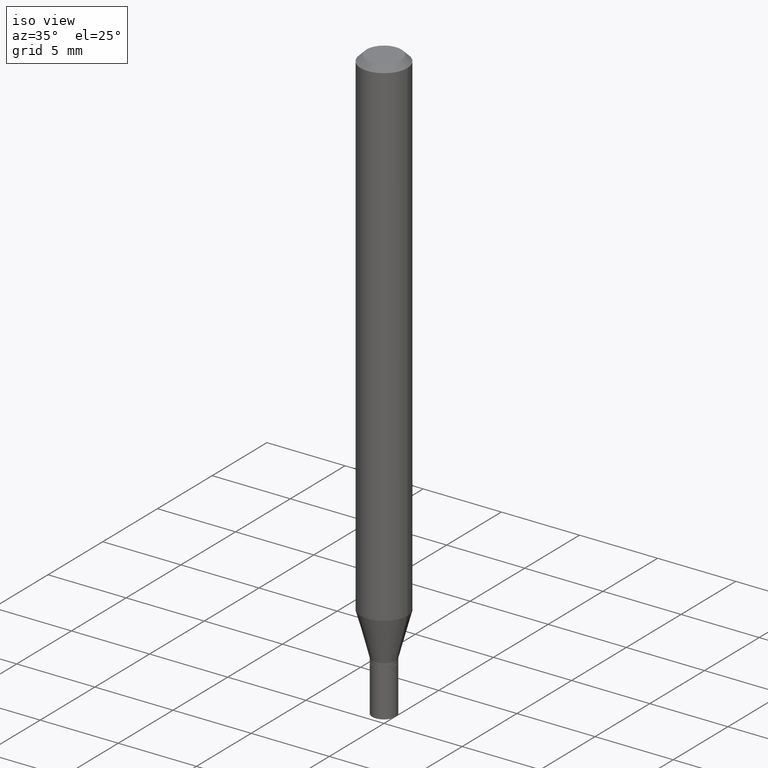
[diagram: clean part render]
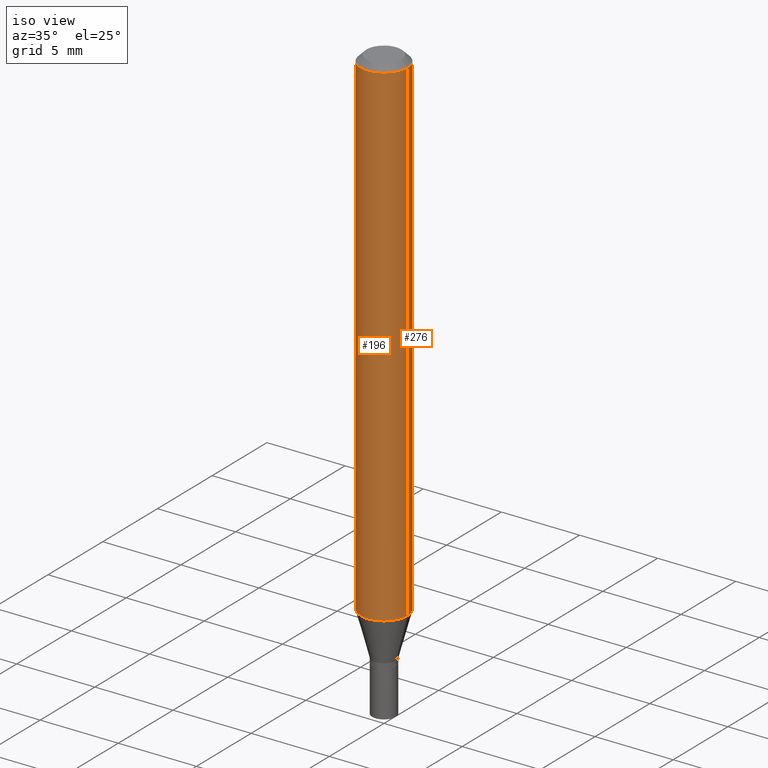
[diagram: same view with one multi-face feature highlighted, each face labeled with its STEP entity id]
A machine part, iso view. The highlighted faces form ONE feature: a constant-radius fillet chain: 2 tangent blend faces with common blend radius 1.4999 mm. The faces share edges in the B-rep.
Their STEP definitions:
[1] entity #276 (Cylinder):
#8 = EDGE_CURVE ( 'NONE', #217, #253, #255, .T. ) ;
#12 = CARTESIAN_POINT ( 'NONE',  ( 3.668203209277705088E-31, -5.237222008264718399E-17, -0.01499999999999999944 ) ) ;
#15 = DIRECTION ( 'NONE',  ( -2.445468806185136597E-29, 3.491481338843145583E-15, 1.000000000000000000 ) ) ;
#27 = EDGE_CURVE ( 'NONE', #217, #141, #251, .T. ) ;
#36 = DIRECTION ( 'NONE',  ( 1.000000000000000000, -6.982962677686266711E-15, 0.000000000000000000 ) ) ;
#40 = DIRECTION ( 'NONE',  ( 1.000000000000000000, -6.982962677686273021E-15, 0.000000000000000000 ) ) ;
#42 = CARTESIAN_POINT ( 'NONE',  ( -0.05905000000000002608, -1.809568633205325453E-15, -0.01499999999999999944 ) ) ;
#49 = DIRECTION ( 'NONE',  ( -2.445468806185136877E-29, 3.491481338843145188E-15, 1.000000000000000000 ) ) ;
#51 = CYLINDRICAL_SURFACE ( 'NONE', #380, 0.05905000000000000526 ) ;
#104 = CARTESIAN_POINT ( 'NONE',  ( 0.05905000000000000526, -4.123439461173741313E-16, 2.879382386107500571E-30 ) ) ;
#118 = EDGE_CURVE ( 'NONE', #253, #126, #175, .T. ) ;
#121 = ORIENTED_EDGE ( 'NONE', *, *, #118, .F. ) ;
#126 = VERTEX_POINT ( 'NONE', #42 ) ;
#132 = CARTESIAN_POINT ( 'NONE',  ( -0.05905000000000000526, 4.195754854663391971E-16, -2.904631170795522242E-30 ) ) ;
#141 = VERTEX_POINT ( 'NONE', #201 ) ;
#151 = CARTESIAN_POINT ( 'NONE',  ( 0.000000000000000000, 0.000000000000000000, 0.000000000000000000 ) ) ;
#152 = EDGE_CURVE ( 'NONE', #141, #126, #459, .T. ) ;
#175 = CIRCLE ( 'NONE', #421, 0.05905000000000001914 ) ;
#201 = CARTESIAN_POINT ( 'NONE',  ( -0.05904999999999999832, -3.986340531794342137E-15, -1.261904501176718707 ) ) ;
#217 = VERTEX_POINT ( 'NONE', #412 ) ;
#251 = CIRCLE ( 'NONE', #345, 0.05904999999999999832 ) ;
#253 = VERTEX_POINT ( 'NONE', #296 ) ;
#255 = LINE ( 'NONE', #104, #354 ) ;
#257 = DIRECTION ( 'NONE',  ( -2.445468806185136877E-29, 3.491481338843145188E-15, 1.000000000000000000 ) ) ;
#263 = ORIENTED_EDGE ( 'NONE', *, *, #152, .T. ) ;
#276 = ADVANCED_FACE ( 'NONE', ( #329 ), #51, .T. ) ;
#280 = ORIENTED_EDGE ( 'NONE', *, *, #8, .F. ) ;
#294 = DIRECTION ( 'NONE',  ( -2.445468806185136597E-29, 3.491481338843145583E-15, 1.000000000000000000 ) ) ;
#296 = CARTESIAN_POINT ( 'NONE',  ( 0.05905000000000001914, -4.647161662000214077E-16, -0.01499999999999999944 ) ) ;
#303 = EDGE_LOOP ( 'NONE', ( #346, #263, #121, #280 ) ) ;
#319 = CARTESIAN_POINT ( 'NONE',  ( 3.085948094012280841E-29, -4.405916017260681630E-15, -1.261904501176718707 ) ) ;
#329 = FACE_OUTER_BOUND ( 'NONE', #303, .T. ) ;
#345 = AXIS2_PLACEMENT_3D ( 'NONE', #319, #294, #40 ) ;
#346 = ORIENTED_EDGE ( 'NONE', *, *, #27, .T. ) ;
#354 = VECTOR ( 'NONE', #257, 39.37007874015748143 ) ;
#363 = DIRECTION ( 'NONE',  ( -2.445468806185136597E-29, 3.491481338843145583E-15, 1.000000000000000000 ) ) ;
#380 = AXIS2_PLACEMENT_3D ( 'NONE', #151, #15, #409 ) ;
#409 = DIRECTION ( 'NONE',  ( 1.000000000000000000, -6.982962677686267499E-15, 4.876176775795936353E-29 ) ) ;
#412 = CARTESIAN_POINT ( 'NONE',  ( 0.05904999999999999832, -4.818259963378055761E-15, -1.261904501176718707 ) ) ;
#421 = AXIS2_PLACEMENT_3D ( 'NONE', #12, #363, #36 ) ;
#439 = VECTOR ( 'NONE', #49, 39.37007874015748143 ) ;
#459 = LINE ( 'NONE', #132, #439 ) ;
[2] entity #196 (Cylinder):
#8 = EDGE_CURVE ( 'NONE', #217, #253, #255, .T. ) ;
#10 = CARTESIAN_POINT ( 'NONE',  ( 3.668203209277705088E-31, -5.237222008264718399E-17, -0.01499999999999999944 ) ) ;
#13 = DIRECTION ( 'NONE',  ( -2.445468806185136597E-29, 3.491481338843145583E-15, 1.000000000000000000 ) ) ;
#23 = AXIS2_PLACEMENT_3D ( 'NONE', #360, #78, #406 ) ;
#42 = CARTESIAN_POINT ( 'NONE',  ( -0.05905000000000002608, -1.809568633205325453E-15, -0.01499999999999999944 ) ) ;
#49 = DIRECTION ( 'NONE',  ( -2.445468806185136877E-29, 3.491481338843145188E-15, 1.000000000000000000 ) ) ;
#52 = DIRECTION ( 'NONE',  ( 1.000000000000000000, -6.982962677686266711E-15, 0.000000000000000000 ) ) ;
#67 = ORIENTED_EDGE ( 'NONE', *, *, #152, .F. ) ;
#78 = DIRECTION ( 'NONE',  ( -2.445468806185136597E-29, 3.491481338843145583E-15, 1.000000000000000000 ) ) ;
#81 = FACE_OUTER_BOUND ( 'NONE', #419, .T. ) ;
#83 = ORIENTED_EDGE ( 'NONE', *, *, #8, .T. ) ;
#104 = CARTESIAN_POINT ( 'NONE',  ( 0.05905000000000000526, -4.123439461173741313E-16, 2.879382386107500571E-30 ) ) ;
#126 = VERTEX_POINT ( 'NONE', #42 ) ;
#132 = CARTESIAN_POINT ( 'NONE',  ( -0.05905000000000000526, 4.195754854663391971E-16, -2.904631170795522242E-30 ) ) ;
#140 = AXIS2_PLACEMENT_3D ( 'NONE', #370, #13, #324 ) ;
#141 = VERTEX_POINT ( 'NONE', #201 ) ;
#152 = EDGE_CURVE ( 'NONE', #141, #126, #459, .T. ) ;
#184 = EDGE_CURVE ( 'NONE', #141, #217, #359, .T. ) ;
#191 = CYLINDRICAL_SURFACE ( 'NONE', #140, 0.05905000000000000526 ) ;
#196 = ADVANCED_FACE ( 'NONE', ( #81 ), #191, .T. ) ;
#201 = CARTESIAN_POINT ( 'NONE',  ( -0.05904999999999999832, -3.986340531794342137E-15, -1.261904501176718707 ) ) ;
#217 = VERTEX_POINT ( 'NONE', #412 ) ;
#253 = VERTEX_POINT ( 'NONE', #296 ) ;
#255 = LINE ( 'NONE', #104, #354 ) ;
#257 = DIRECTION ( 'NONE',  ( -2.445468806185136877E-29, 3.491481338843145188E-15, 1.000000000000000000 ) ) ;
#296 = CARTESIAN_POINT ( 'NONE',  ( 0.05905000000000001914, -4.647161662000214077E-16, -0.01499999999999999944 ) ) ;
#324 = DIRECTION ( 'NONE',  ( 1.000000000000000000, -6.982962677686267499E-15, 4.876176775795936353E-29 ) ) ;
#354 = VECTOR ( 'NONE', #257, 39.37007874015748143 ) ;
#359 = CIRCLE ( 'NONE', #23, 0.05904999999999999832 ) ;
#360 = CARTESIAN_POINT ( 'NONE',  ( 3.085948094012280841E-29, -4.405916017260681630E-15, -1.261904501176718707 ) ) ;
#369 = CIRCLE ( 'NONE', #422, 0.05905000000000001914 ) ;
#370 = CARTESIAN_POINT ( 'NONE',  ( 0.000000000000000000, 0.000000000000000000, 0.000000000000000000 ) ) ;
#390 = ORIENTED_EDGE ( 'NONE', *, *, #184, .T. ) ;
#391 = EDGE_CURVE ( 'NONE', #126, #253, #369, .T. ) ;
#406 = DIRECTION ( 'NONE',  ( 1.000000000000000000, -6.982962677686273021E-15, 0.000000000000000000 ) ) ;
#412 = CARTESIAN_POINT ( 'NONE',  ( 0.05904999999999999832, -4.818259963378055761E-15, -1.261904501176718707 ) ) ;
#419 = EDGE_LOOP ( 'NONE', ( #67, #390, #83, #424 ) ) ;
#422 = AXIS2_PLACEMENT_3D ( 'NONE', #10, #449, #52 ) ;
#424 = ORIENTED_EDGE ( 'NONE', *, *, #391, .F. ) ;
#439 = VECTOR ( 'NONE', #49, 39.37007874015748143 ) ;
#449 = DIRECTION ( 'NONE',  ( -2.445468806185136597E-29, 3.491481338843145583E-15, 1.000000000000000000 ) ) ;
#459 = LINE ( 'NONE', #132, #439 ) ;